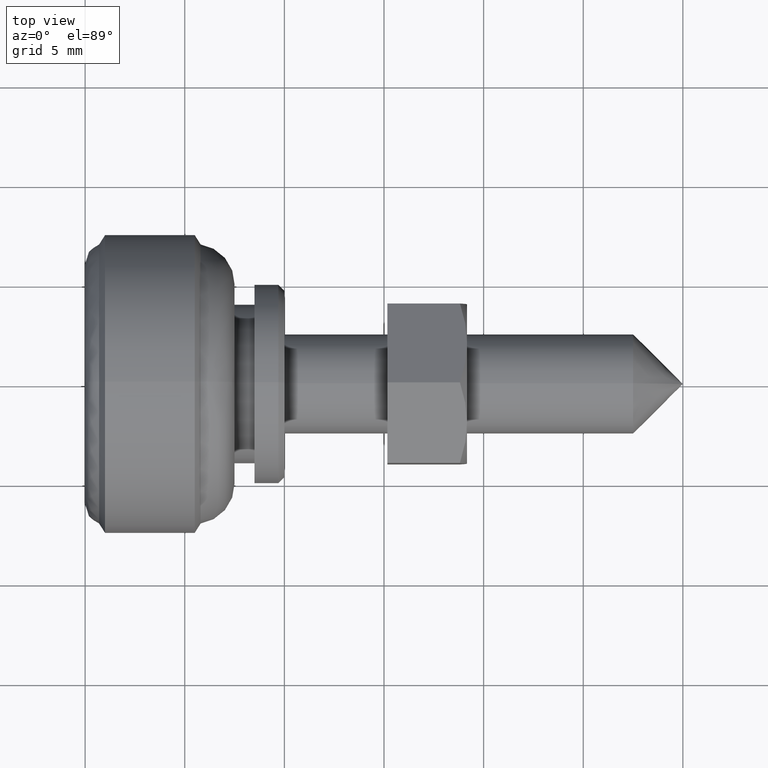
[diagram: clean part render]
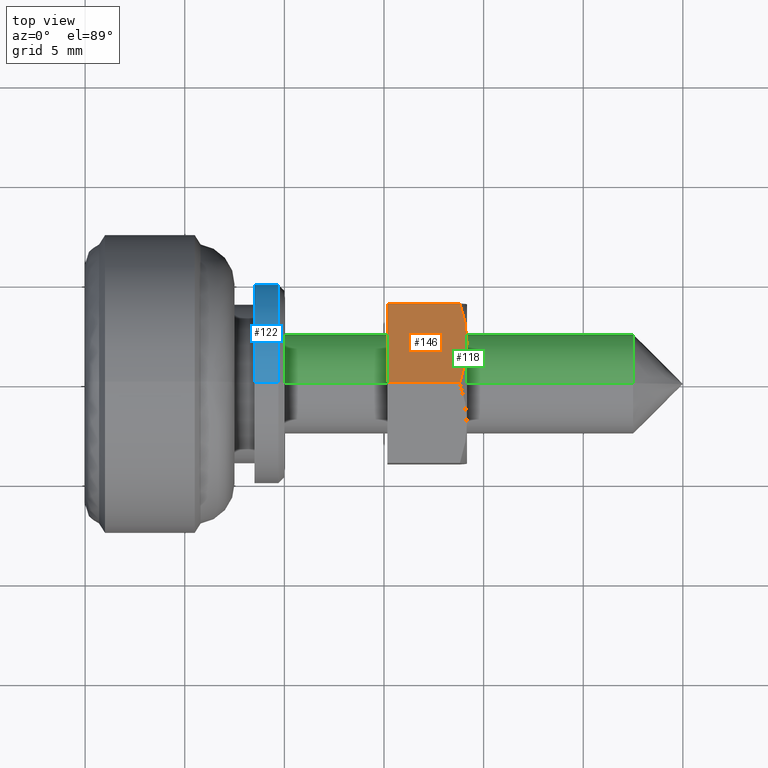
[diagram: same view with three faces highlighted in distinct colors, each labeled with its STEP entity id]
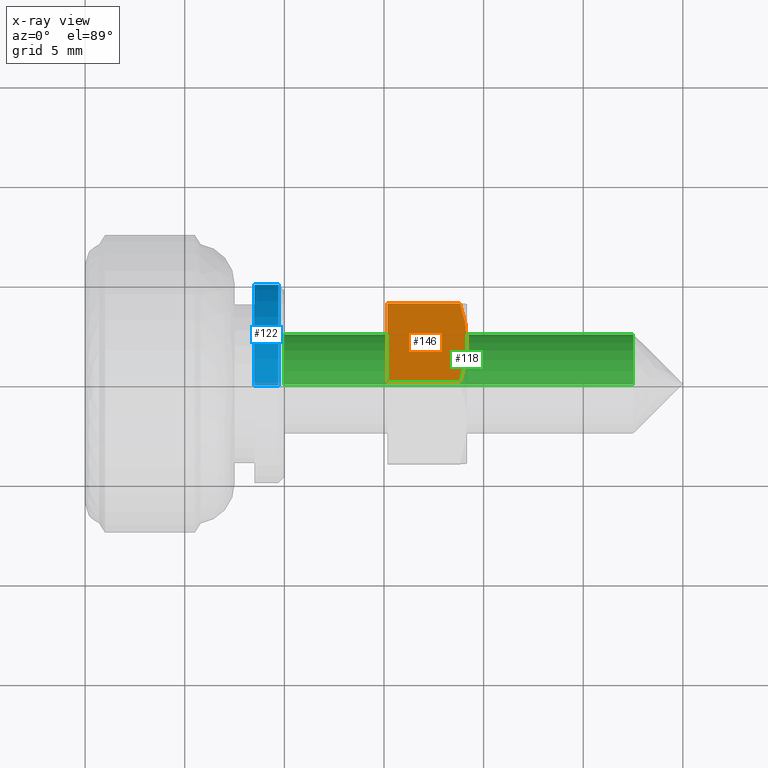
[diagram: x-ray of the same camera — body ghosted, the three highlighted faces saturated]
A machine part, top view with three faces highlighted in distinct colors.
The next image is the same camera in x-ray (body ghosted, the three faces saturated) — at least one of them is partly hidden behind the body in this view.
Their STEP definitions:

[orange] entity #146 — the highlighted planar face has unit normal (0, 0.5, 0.866).
#146=ADVANCED_FACE('',(#497),#496,.T.);
#496=PLANE('',#874);
#497=FACE_OUTER_BOUND('',#875,.T.);
#871=CARTESIAN_POINT('',(-2.07846096908E+00,4.40000000000E+00,-4.00000000000E-01));
#872=DIRECTION('',(-8.66025403784E-01,5.00000000000E-01,0.00000000000E+00));
#873=DIRECTION('',(-5.00000000000E-01,-8.66025403784E-01,0.00000000000E+00));
#874=AXIS2_PLACEMENT_3D('',#871,#872,#873);
#875=EDGE_LOOP('',(#1044,#1045,#1046,#1047,#1048));
#1044=ORIENTED_EDGE('',*,*,#1149,.T.);
#1045=ORIENTED_EDGE('',*,*,#1151,.T.);
#1046=ORIENTED_EDGE('',*,*,#1126,.T.);
#1047=ORIENTED_EDGE('',*,*,#1137,.F.);
#1048=ORIENTED_EDGE('',*,*,#1152,.T.);
#1126=EDGE_CURVE('',#1502,#1503,#1504,.T.);
#1137=EDGE_CURVE('',#1576,#1503,#1577,.T.);
#1149=EDGE_CURVE('',#1655,#1648,#1656,.T.);
#1151=EDGE_CURVE('',#1648,#1502,#1668,.T.);
#1152=EDGE_CURVE('',#1576,#1655,#1674,.T.);
#1502=VERTEX_POINT('',#1924);
#1503=VERTEX_POINT('',#1925);
#1504=(BOUNDED_CURVE() B_SPLINE_CURVE(3,(#1926,#1927,#1928,#1929,#1930,#1931),.UNSPECIFIED.,.F.,.F.) B_SPLINE_CURVE_WITH_KNOTS((4,2,4),(2.33697415164E-03,3.50097588572E-03,4.66497761979E-03),.UNSPECIFIED.) CURVE() GEOMETRIC_REPRESENTATION_ITEM() RATIONAL_B_SPLINE_CURVE((1.00000000000E+00,1.00000000000E+00,1.00000000000E+00,1.00000000000E+00,1.00000000000E+00,1.00000000000E+00)) REPRESENTATION_ITEM('') );
#1576=VERTEX_POINT('',#1984);
#1577=LINE('',#1985,#1986);
#1648=VERTEX_POINT('',#2027);
#1655=VERTEX_POINT('',#2034);
#1656=LINE('',#2035,#2036);
#1668=(BOUNDED_CURVE() B_SPLINE_CURVE(3,(#2041,#2042,#2043,#2044),.UNSPECIFIED.,.F.,.F.) B_SPLINE_CURVE_WITH_KNOTS((4,4),(2.38073758162E-07,2.33697415164E-03),.UNSPECIFIED.) CURVE() GEOMETRIC_REPRESENTATION_ITEM() RATIONAL_B_SPLINE_CURVE((1.00000000000E+00,1.00000000000E+00,1.00000000000E+00,1.00000000000E+00)) REPRESENTATION_ITEM('') );
#1674=LINE('',#2045,#2046);
#1924=CARTESIAN_POINT('',(-3.46410161514E+00,2.00000000000E+00,4.00000000000E+00));
#1925=CARTESIAN_POINT('',(-2.30940107676E+00,4.00000000000E+00,3.64273441009E+00));
#1926=CARTESIAN_POINT('',(-3.46410161514E+00,2.00000000000E+00,4.00000000000E+00));
#1927=CARTESIAN_POINT('',(-3.26810954264E+00,2.33946822745E+00,4.00000000000E+00));
#1928=CARTESIAN_POINT('',(-3.07237253703E+00,2.67849466609E+00,3.96578971905E+00));
#1929=CARTESIAN_POINT('',(-2.68781722985E+00,3.34456399644E+00,3.84132451847E+00));
#1930=CARTESIAN_POINT('',(-2.49782313584E+00,3.67364342040E+00,3.75151993662E+00));
#1931=CARTESIAN_POINT('',(-2.30940107676E+00,4.00000000000E+00,3.64273441009E+00));
#1984=CARTESIAN_POINT('',(-2.30940107676E+00,4.00000000000E+00,0.00000000000E+00));
#1985=CARTESIAN_POINT('',(-2.30940107676E+00,4.00000000000E+00,0.00000000000E+00));
#1986=VECTOR('',#1987,3.64273441009E+00);
#1987=DIRECTION('',(0.00000000000E+00,0.00000000000E+00,1.00000000000E+00));
#2027=CARTESIAN_POINT('',(-4.61880215352E+00,4.33680868994E-16,3.64273441009E+00));
#2034=CARTESIAN_POINT('',(-4.61880215352E+00,6.66133814775E-16,0.00000000000E+00));
#2035=CARTESIAN_POINT('',(-4.61880215352E+00,6.66133814775E-16,0.00000000000E+00));
#2036=VECTOR('',#2037,3.64273441009E+00);
#2037=DIRECTION('',(0.00000000000E+00,0.00000000000E+00,1.00000000000E+00));
#2041=CARTESIAN_POINT('',(-4.61880215352E+00,-1.07835443569E-13,3.64273441009E+00));
#2042=CARTESIAN_POINT('',(-4.24101525012E+00,6.54346111116E-01,3.86084978046E+00));
#2043=CARTESIAN_POINT('',(-3.85755613791E+00,1.31851677610E+00,4.00000000000E+00));
#2044=CARTESIAN_POINT('',(-3.46410161514E+00,2.00000000000E+00,4.00000000000E+00));
#2045=CARTESIAN_POINT('',(-2.30940107676E+00,4.00000000000E+00,0.00000000000E+00));
#2046=VECTOR('',#2047,4.61880215352E+00);
#2047=DIRECTION('',(-5.00000000000E-01,-8.66025403784E-01,0.00000000000E+00));

[blue] entity #122 — the highlighted cylindrical surface (partial cylindrical patch) has radius 5 mm, axis along (1, 0, 0).
#122=ADVANCED_FACE('',(#256),#255,.T.);
#255=CYLINDRICAL_SURFACE('',#637,5.00000000000E+00);
#256=FACE_OUTER_BOUND('',#638,.T.);
#634=CARTESIAN_POINT('',(0.00000000000E+00,0.00000000000E+00,1.79625203600E-11));
#635=DIRECTION('',(1.00000000000E+00,-0.00000000000E+00,-0.00000000000E+00));
#636=DIRECTION('',(0.00000000000E+00,0.00000000000E+00,-1.00000000000E+00));
#637=AXIS2_PLACEMENT_3D('',#634,#635,#636);
#638=EDGE_LOOP('',(#942,#943,#944,#945));
#942=ORIENTED_EDGE('',*,*,#1097,.T.);
#943=ORIENTED_EDGE('',*,*,#1098,.F.);
#944=ORIENTED_EDGE('',*,*,#1080,.F.);
#945=ORIENTED_EDGE('',*,*,#1099,.T.);
#1080=EDGE_CURVE('',#1200,#1201,#1202,.T.);
#1097=EDGE_CURVE('',#1296,#1295,#1315,.T.);
#1098=EDGE_CURVE('',#1201,#1295,#1321,.T.);
#1099=EDGE_CURVE('',#1200,#1296,#1327,.T.);
#1200=VERTEX_POINT('',#1743);
#1201=VERTEX_POINT('',#1744);
#1202=CIRCLE('',#1748,5.00000000000E+00);
#1295=VERTEX_POINT('',#1802);
#1296=VERTEX_POINT('',#1803);
#1315=CIRCLE('',#1815,5.00000000000E+00);
#1321=(BOUNDED_CURVE() B_SPLINE_CURVE(1,(#1816,#1817),.UNSPECIFIED.,.F.,.F.) B_SPLINE_CURVE_WITH_KNOTS((2,2),(8.33333134656E-02,9.16666653270E-01),.UNSPECIFIED.) CURVE() GEOMETRIC_REPRESENTATION_ITEM() RATIONAL_B_SPLINE_CURVE((1.00000000000E+00,1.00000000000E+00)) REPRESENTATION_ITEM('') );
#1327=(BOUNDED_CURVE() B_SPLINE_CURVE(1,(#1818,#1819),.UNSPECIFIED.,.F.,.F.) B_SPLINE_CURVE_WITH_KNOTS((2,2),(8.33333333333E-02,9.16666666667E-01),.UNSPECIFIED.) CURVE() GEOMETRIC_REPRESENTATION_ITEM() RATIONAL_B_SPLINE_CURVE((7.50000000000E-01,7.50000000000E-01)) REPRESENTATION_ITEM('') );
#1743=CARTESIAN_POINT('',(-2.15000000000E+01,0.00000000000E+00,5.00000000002E+00));
#1744=CARTESIAN_POINT('',(-2.15000000000E+01,2.96059473233E-16,-4.99999999998E+00));
#1745=CARTESIAN_POINT('',(-2.15000000000E+01,0.00000000000E+00,1.79625203600E-11));
#1746=DIRECTION('',(-1.00000000000E+00,0.00000000000E+00,0.00000000000E+00));
#1747=DIRECTION('',(0.00000000000E+00,-1.22460635382E-16,1.00000000000E+00));
#1748=AXIS2_PLACEMENT_3D('',#1745,#1746,#1747);
#1802=CARTESIAN_POINT('',(-2.03000000000E+01,2.96059473233E-16,-4.99999999998E+00));
#1803=CARTESIAN_POINT('',(-2.03000000000E+01,0.00000000000E+00,5.00000000002E+00));
#1812=CARTESIAN_POINT('',(-2.03000000000E+01,0.00000000000E+00,1.79625203600E-11));
#1813=DIRECTION('',(-1.00000000000E+00,0.00000000000E+00,0.00000000000E+00));
#1814=DIRECTION('',(0.00000000000E+00,-1.22460635382E-16,1.00000000000E+00));
#1815=AXIS2_PLACEMENT_3D('',#1812,#1813,#1814);
#1816=CARTESIAN_POINT('',(-2.15000000286E+01,0.00000000000E+00,-4.99999999998E+00));
#1817=CARTESIAN_POINT('',(-2.03000000193E+01,0.00000000000E+00,-4.99999999998E+00));
#1818=CARTESIAN_POINT('',(-2.15000000000E+01,-2.96059473233E-16,5.00000000002E+00));
#1819=CARTESIAN_POINT('',(-2.03000000000E+01,-2.96059473233E-16,5.00000000002E+00));

[green] entity #118 — the highlighted cylindrical surface (partial cylindrical patch) has radius 2.5 mm, axis along (1, 0, 0).
#118=ADVANCED_FACE('',(#216),#215,.T.);
#215=CYLINDRICAL_SURFACE('',#605,2.50000000002E+00);
#216=FACE_OUTER_BOUND('',#606,.T.);
#602=CARTESIAN_POINT('',(0.00000000000E+00,0.00000000000E+00,1.79625203600E-11));
#603=DIRECTION('',(1.00000000000E+00,-0.00000000000E+00,-0.00000000000E+00));
#604=DIRECTION('',(0.00000000000E+00,0.00000000000E+00,-1.00000000000E+00));
#605=AXIS2_PLACEMENT_3D('',#602,#603,#604);
#606=EDGE_LOOP('',(#926,#927,#928,#929));
#926=ORIENTED_EDGE('',*,*,#1091,.T.);
#927=ORIENTED_EDGE('',*,*,#1092,.F.);
#928=ORIENTED_EDGE('',*,*,#1078,.F.);
#929=ORIENTED_EDGE('',*,*,#1093,.T.);
#1078=EDGE_CURVE('',#1186,#1187,#1188,.T.);
#1091=EDGE_CURVE('',#1257,#1256,#1277,.T.);
#1092=EDGE_CURVE('',#1187,#1256,#1283,.T.);
#1093=EDGE_CURVE('',#1186,#1257,#1289,.T.);
#1186=VERTEX_POINT('',#1733);
#1187=VERTEX_POINT('',#1734);
#1188=CIRCLE('',#1738,2.50000000002E+00);
#1256=VERTEX_POINT('',#1783);
#1257=VERTEX_POINT('',#1784);
#1277=CIRCLE('',#1797,2.50000000002E+00);
#1283=(BOUNDED_CURVE() B_SPLINE_CURVE(1,(#1798,#1799),.UNSPECIFIED.,.F.,.F.) B_SPLINE_CURVE_WITH_KNOTS((2,2),(8.33333328360E-02,9.16666665505E-01),.UNSPECIFIED.) CURVE() GEOMETRIC_REPRESENTATION_ITEM() RATIONAL_B_SPLINE_CURVE((1.00000000000E+00,1.00000000000E+00)) REPRESENTATION_ITEM('') );
#1289=(BOUNDED_CURVE() B_SPLINE_CURVE(1,(#1800,#1801),.UNSPECIFIED.,.F.,.F.) B_SPLINE_CURVE_WITH_KNOTS((2,2),(8.33333333333E-02,9.16666666667E-01),.UNSPECIFIED.) CURVE() GEOMETRIC_REPRESENTATION_ITEM() RATIONAL_B_SPLINE_CURVE((7.50000000000E-01,7.50000000000E-01)) REPRESENTATION_ITEM('') );
#1733=CARTESIAN_POINT('',(-2.00000000000E+01,0.00000000000E+00,2.50000000004E+00));
#1734=CARTESIAN_POINT('',(-2.00000000000E+01,1.48029736617E-16,-2.50000000001E+00));
#1735=CARTESIAN_POINT('',(-2.00000000000E+01,0.00000000000E+00,1.79625203600E-11));
#1736=DIRECTION('',(-1.00000000000E+00,0.00000000000E+00,0.00000000000E+00));
#1737=DIRECTION('',(0.00000000000E+00,-1.22460635382E-16,1.00000000000E+00));
#1738=AXIS2_PLACEMENT_3D('',#1735,#1736,#1737);
#1783=CARTESIAN_POINT('',(-2.49999999999E+00,1.48029736617E-16,-2.50000000001E+00));
#1784=CARTESIAN_POINT('',(-2.49999999999E+00,0.00000000000E+00,2.50000000004E+00));
#1794=CARTESIAN_POINT('',(-2.49999999999E+00,0.00000000000E+00,1.79625203600E-11));
#1795=DIRECTION('',(-1.00000000000E+00,0.00000000000E+00,0.00000000000E+00));
#1796=DIRECTION('',(0.00000000000E+00,-1.22460635382E-16,1.00000000000E+00));
#1797=AXIS2_PLACEMENT_3D('',#1794,#1795,#1796);
#1798=CARTESIAN_POINT('',(-2.00000000104E+01,0.00000000000E+00,-2.50000000001E+00));
#1799=CARTESIAN_POINT('',(-2.50000002439E+00,0.00000000000E+00,-2.50000000001E+00));
#1800=CARTESIAN_POINT('',(-2.00000000000E+01,-1.48029736617E-16,2.50000000004E+00));
#1801=CARTESIAN_POINT('',(-2.49999999999E+00,-1.48029736617E-16,2.50000000004E+00));